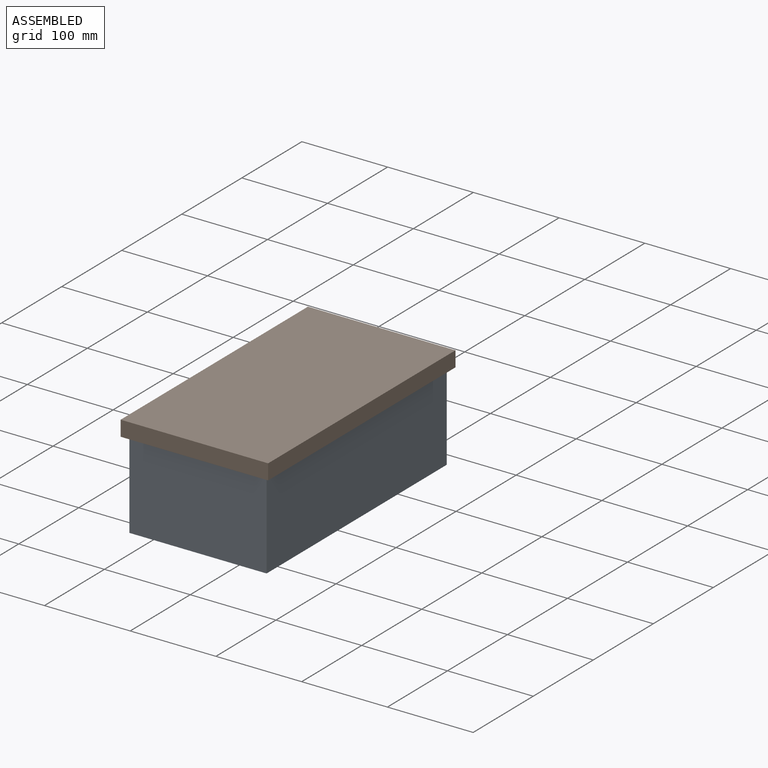
[diagram: assembled view]
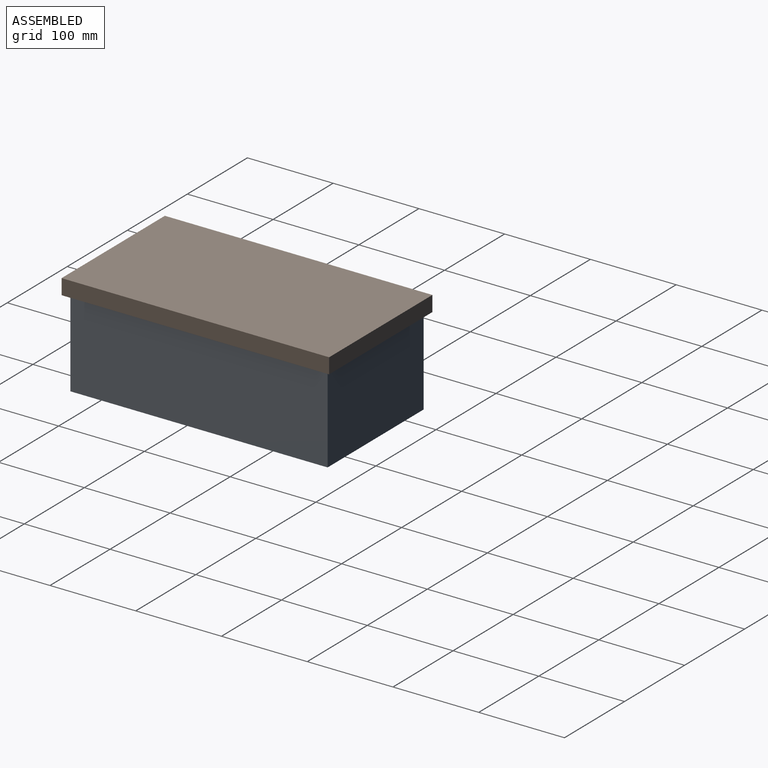
[diagram: assembled view, second angle]
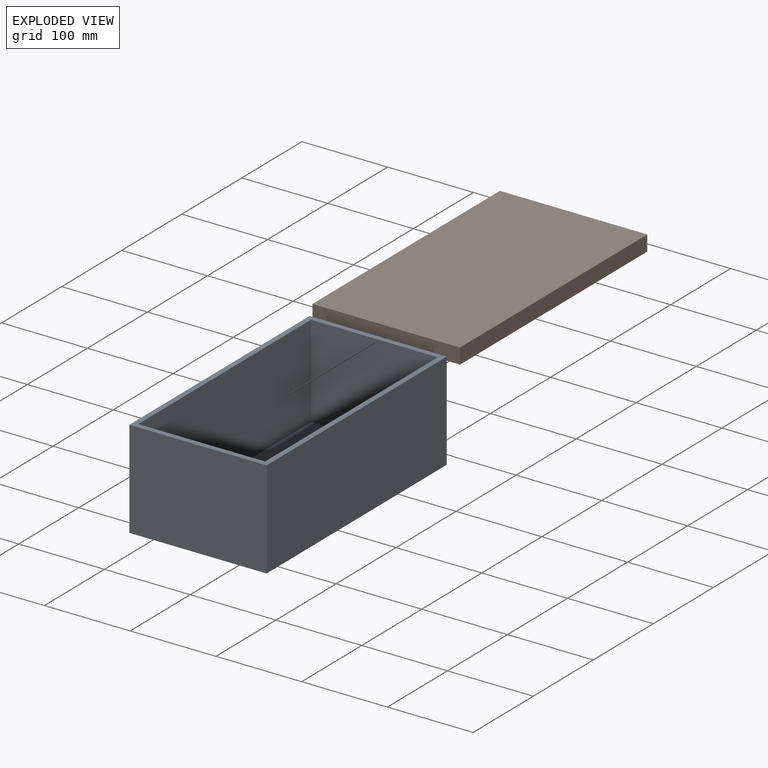
[diagram: exploded view]
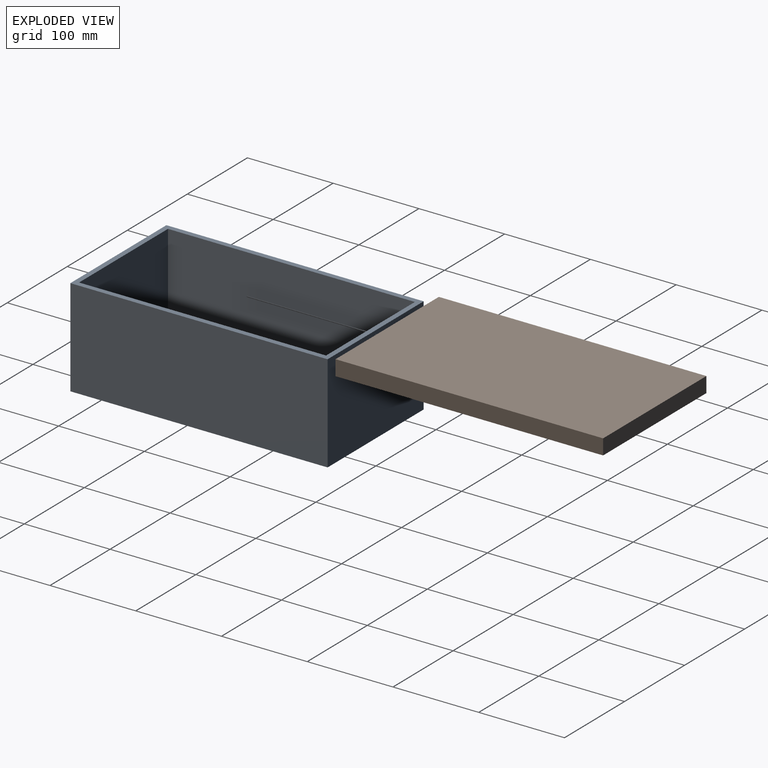
[diagram: exploded view, second angle]
ASSEMBLY  parts=2 mates=3
PART A: 11 faces, bbox 160x300x114 mm
  f0: plane 300x160mm, normal (0,0,1), area 5376mm2, adj f1,f2,f3,f4,f6,f7,f8,f9
  f1: plane 160x114mm, normal (0,1,0), area 18240mm2, adj f0,f2,f4,f5
  f2: plane 300x114mm, normal (-1,0,0), area 34200mm2, adj f0,f1,f3,f5
  f3: plane 160x114mm, normal (0,-1,0), area 18240mm2, adj f0,f2,f4,f5
  f4: plane 300x114mm, normal (1,0,0), area 34200mm2, adj f0,f1,f3,f5
  f5: plane 300x160mm, normal (0,0,-1), area 48000mm2, adj f1,f2,f3,f4
  f6: plane 288x108mm, normal (-1,0,0), area 31104mm2, adj f0,f7,f9,f10
  f7: plane 148x108mm, normal (0,-1,0), area 15984mm2, adj f0,f6,f8,f10
  f8: plane 288x108mm, normal (1,0,0), area 31104mm2, adj f0,f7,f9,f10
  f9: plane 148x108mm, normal (0,1,0), area 15984mm2, adj f0,f6,f8,f10
  f10: plane 288x148mm, normal (0,0,1), area 42624mm2, adj f6,f7,f8,f9
PART B: 11 faces, bbox 172x312x18 mm
  f0: plane 172x18mm, normal (0,1,0), area 3096mm2, adj f1,f3,f4,f9
  f1: plane 312x18mm, normal (-1,0,0), area 5616mm2, adj f0,f2,f4,f9
  f2: plane 172x18mm, normal (0,-1,0), area 3096mm2, adj f1,f3,f4,f9
  f3: plane 312x18mm, normal (1,0,0), area 5616mm2, adj f0,f2,f4,f9
  f4: plane 312x172mm, normal (0,0,1), area 53664mm2, adj f0,f1,f2,f3
  f5: plane 300x12mm, normal (-1,0,0), area 3600mm2, adj f6,f8,f9,f10
  f6: plane 160x12mm, normal (0,-1,0), area 1920mm2, adj f5,f7,f9,f10
  f7: plane 300x12mm, normal (1,0,0), area 3600mm2, adj f6,f8,f9,f10
  f8: plane 160x12mm, normal (0,1,0), area 1920mm2, adj f5,f7,f9,f10
  f9: plane 312x172mm, normal (0,0,-1), area 5664mm2, adj f0,f1,f2,f3,f5,f6,f7,f8
  f10: plane 300x160mm, normal (0,0,-1), area 48000mm2, adj f5,f6,f7,f8
PLACE A t=(-120.73,71.18,-142.96)mm fixed
PLACE B t=(-126.73,77.18,-28.96)mm
MATE planar B.f8 <-> A.f3  axis (0,1,0) through (-40.73,-228.82,-34.96)mm
MATE planar B.f10 <-> A.f0  axis (0,0,-1) through (-40.73,-78.82,-28.96)mm
MATE planar B.f5 <-> A.f4  axis (-1,0,0) through (39.27,-78.82,-34.96)mm
